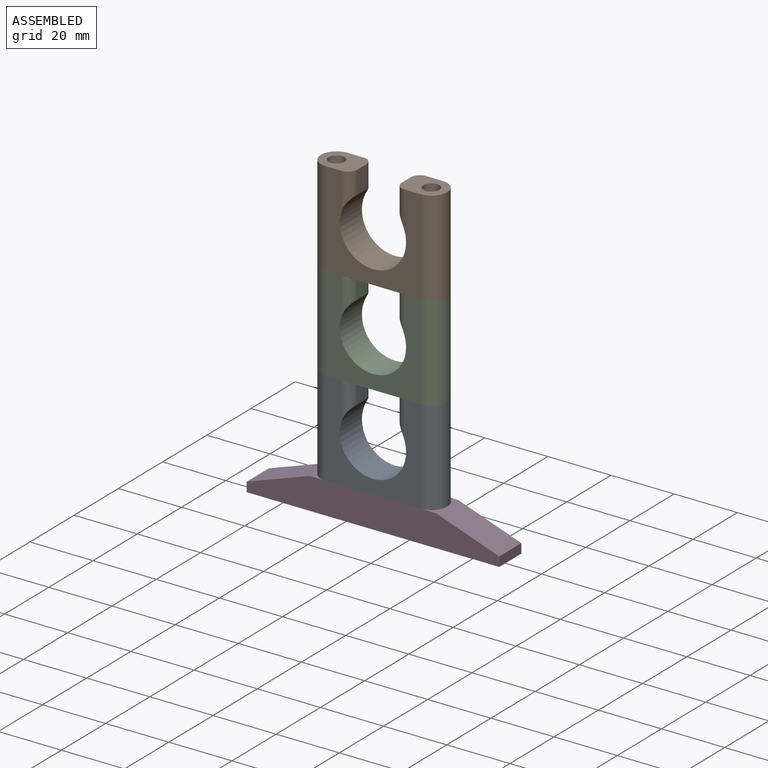
[diagram: assembled view]
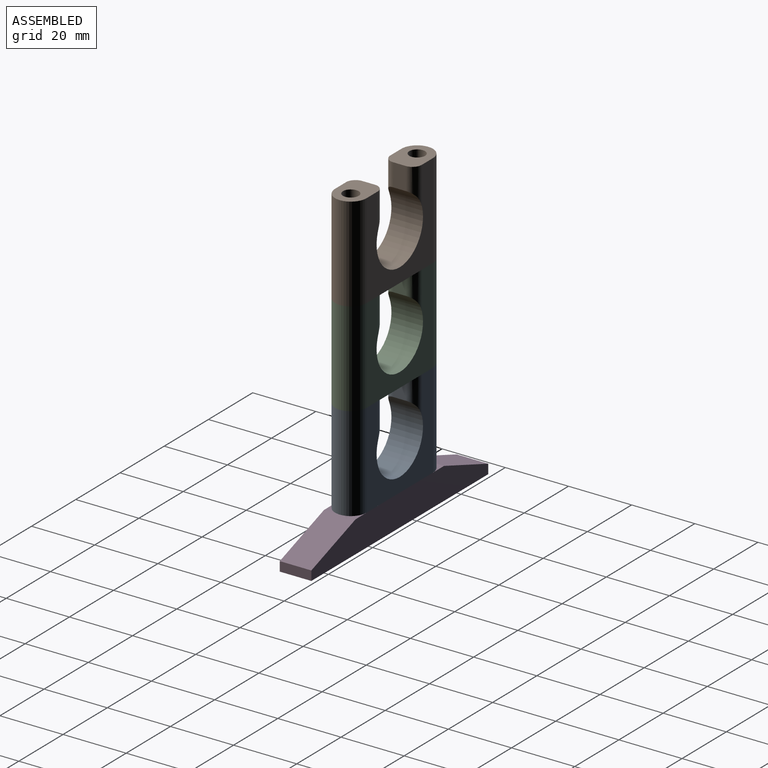
[diagram: assembled view, second angle]
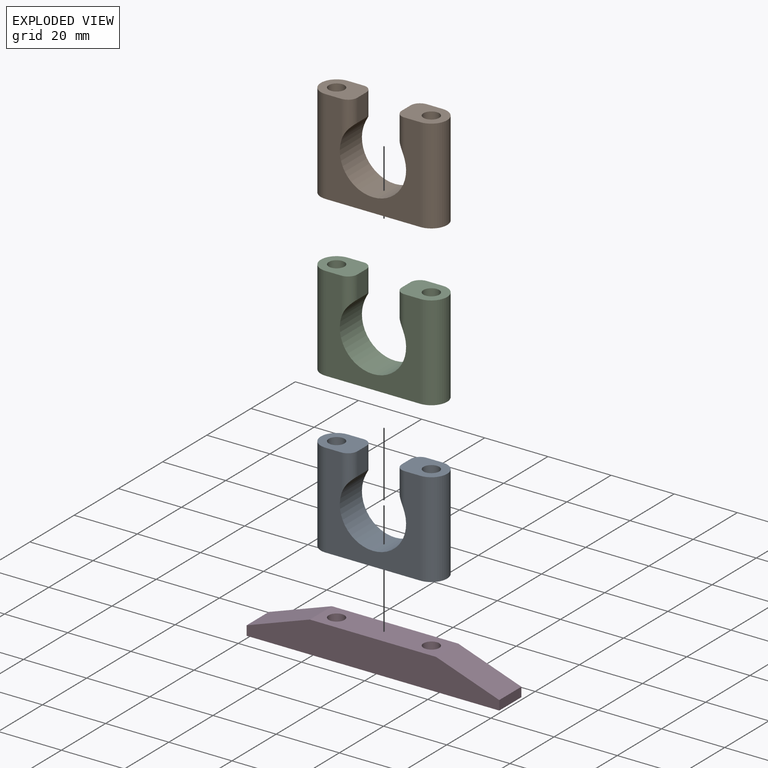
[diagram: exploded view]
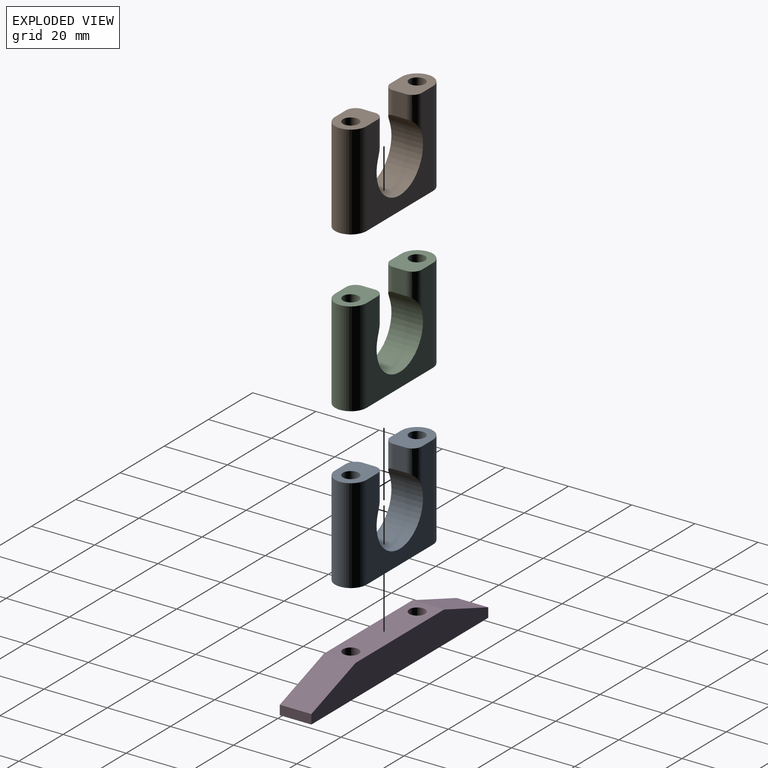
[diagram: exploded view, second angle]
ASSEMBLY  parts=4 mates=3
PART A: 16 faces, bbox 40x30x10 mm
  f0: plane 13x10mm, normal (0,1,0), area 95.8mm2, adj f1,f5,f6,f9,f10,f14,f15
  f1: plane 30x30mm, normal (0,0,1), area 424.7mm2, adj f0,f2,f3,f4,f8,f9,f13,f14
  f2: plane 13x10mm, normal (0,1,0), area 95.8mm2, adj f1,f5,f7,f8,f11,f12,f13
  f3: plane 40x10mm, normal (0,-1,0), area 339.3mm2, adj f1,f5,f6,f7,f8,f9
  f4: cylinder r=10.5mm len=21mm, axis (0,0,-1), area 495mm2, adj f1,f5,f10,f11,f12,f13,f14,f15
  f5: plane 30x30mm, normal (0,0,-1), area 424.7mm2, adj f0,f2,f3,f4,f8,f9,f12,f15
  f6: cylinder r=2.5mm len=30mm, axis (0,1,0), area 471.2mm2, adj f0,f3
  f7: cylinder r=2.5mm len=30mm, axis (0,1,0), area 471.2mm2, adj f2,f3
  f8: cylinder r=5mm len=30mm, axis (0,1,0), area 471.2mm2, adj f1,f2,f3,f5
  f9: cylinder r=5mm len=30mm, axis (0,-1,0), area 471.2mm2, adj f0,f1,f3,f5
  f10: plane 7.17x4mm, normal (-1,0,0), area 28.7mm2, adj f0,f4,f14,f15
  f11: plane 7.17x4mm, normal (1,0,0), area 28.7mm2, adj f2,f4,f12,f13
  f12: cylinder r=3mm len=11.8mm, axis (0,1,0), area 40mm2, adj f2,f4,f5,f11
  f13: cylinder r=3mm len=11.8mm, axis (0,-1,0), area 40mm2, adj f1,f2,f4,f11
  f14: cylinder r=3mm len=11.8mm, axis (0,1,0), area 40mm2, adj f0,f1,f4,f10
  f15: cylinder r=3mm len=11.8mm, axis (0,-1,0), area 40mm2, adj f0,f4,f5,f10
PART B: same geometry as A
PART C: same geometry as A
PART D: 14 faces, bbox 80x10x10 mm
  f0: cylinder r=2.5mm len=5mm, axis (0,0,-1), area 78.5mm2, adj f6,f13
  f1: cylinder r=2.5mm len=5mm, axis (0,0,-1), area 78.5mm2, adj f6,f11
  f2: plane 80x10mm, normal (0,1,0), area 660mm2, adj f3,f5,f6,f7,f8,f9
  f3: plane 10x3mm, normal (-1,0,0), area 30mm2, adj f2,f4,f7,f9
  f4: plane 80x10mm, normal (0,-1,0), area 660mm2, adj f3,f5,f6,f7,f8,f9
  f5: plane 10x3mm, normal (1,0,0), area 30mm2, adj f2,f4,f7,f8
  f6: plane 40x10mm, normal (0,0,1), area 360.7mm2, adj f0,f1,f2,f4,f8,f9
  f7: plane 80x10mm, normal (0,0,-1), area 699.5mm2, adj f2,f3,f4,f5,f10,f12
  f8: plane 20x10mm, normal (0.33,0,0.94), area 211.9mm2, adj f2,f4,f5,f6
  f9: plane 20x10mm, normal (-0.33,0,0.94), area 211.9mm2, adj f2,f3,f4,f6
  f10: cylinder r=4mm len=8mm, axis (0,0,-1), area 125.7mm2, adj f7,f11
  f11: plane 8x8mm, normal (0,0,-1), area 30.6mm2, adj f1,f10
  f12: cylinder r=4mm len=8mm, axis (0,0,-1), area 125.7mm2, adj f7,f13
  f13: plane 8x8mm, normal (0,0,-1), area 30.6mm2, adj f0,f12
PLACE A rot(axis=(1,0,0),90deg) t=(-118.52,-8.34,-27.95)mm
PLACE B rot(axis=(1,0,0),90deg) t=(-118.52,-8.34,32.05)mm
PLACE C rot(axis=(1,0,0),90deg) t=(-118.52,-8.34,2.05)mm
PLACE D t=(-118.52,-13.34,-52.95)mm
MATE fastened A.f6 <-> D.f1  axis (0,0,-1) through (-103.52,-13.34,-42.95)mm
MATE fastened C.f6 <-> B.f6  axis (0,0,1) through (-103.52,-13.34,17.05)mm
MATE fastened A.f6 <-> C.f6  axis (0,0,-1) through (-103.52,-13.34,-12.95)mm
